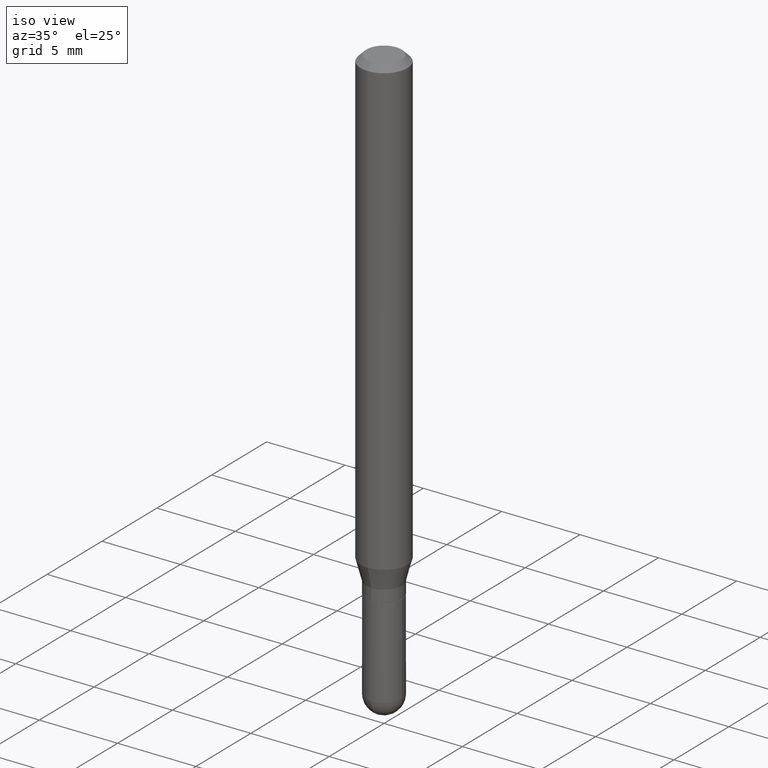
[diagram: clean part render]
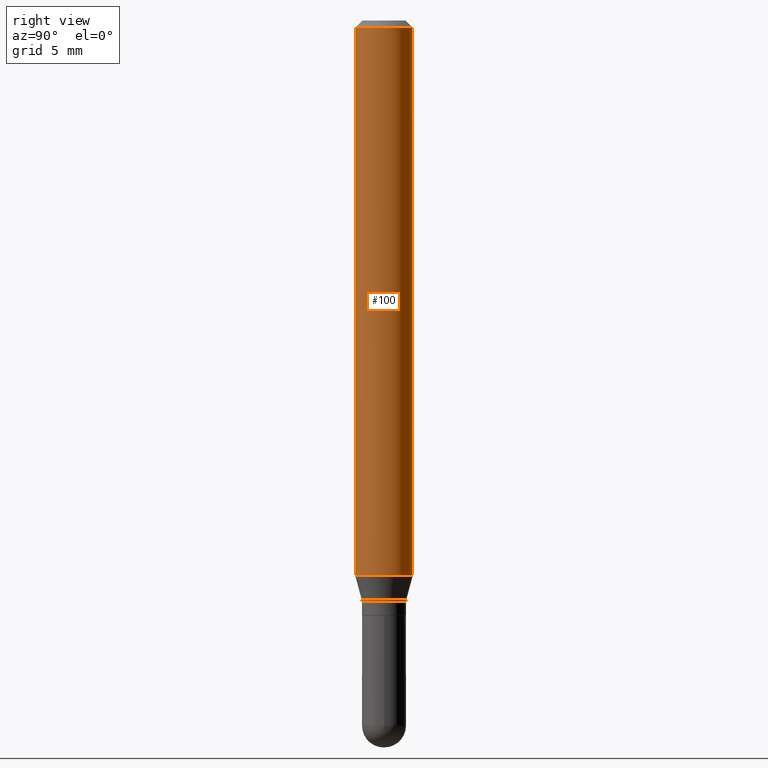
[diagram: tour spotlight — one face highlighted and labeled with its STEP entity id]
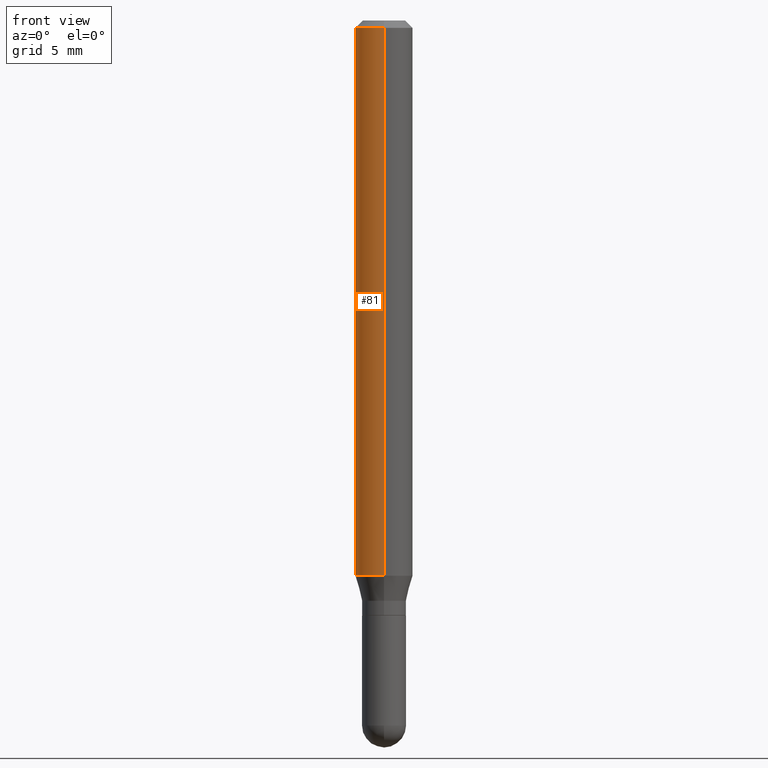
[diagram: tour spotlight — one face highlighted and labeled with its STEP entity id]
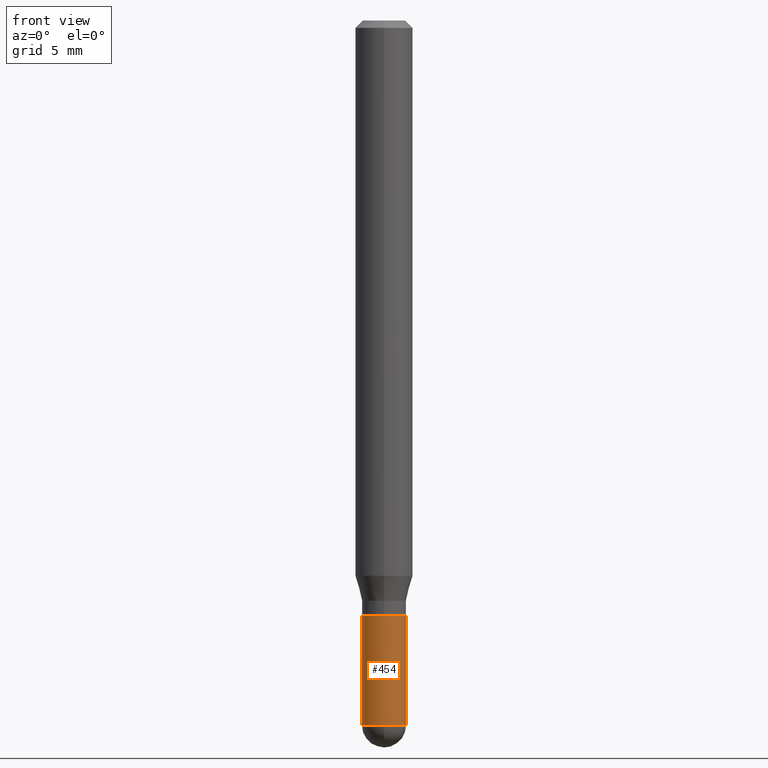
[diagram: tour spotlight — one face highlighted and labeled with its STEP entity id]
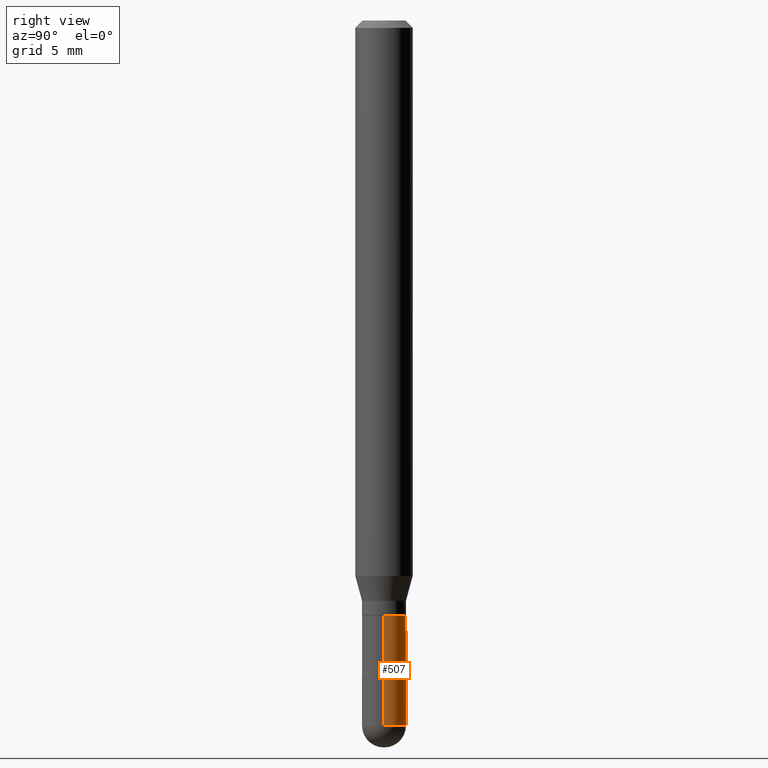
[diagram: tour spotlight — one face highlighted and labeled with its STEP entity id]
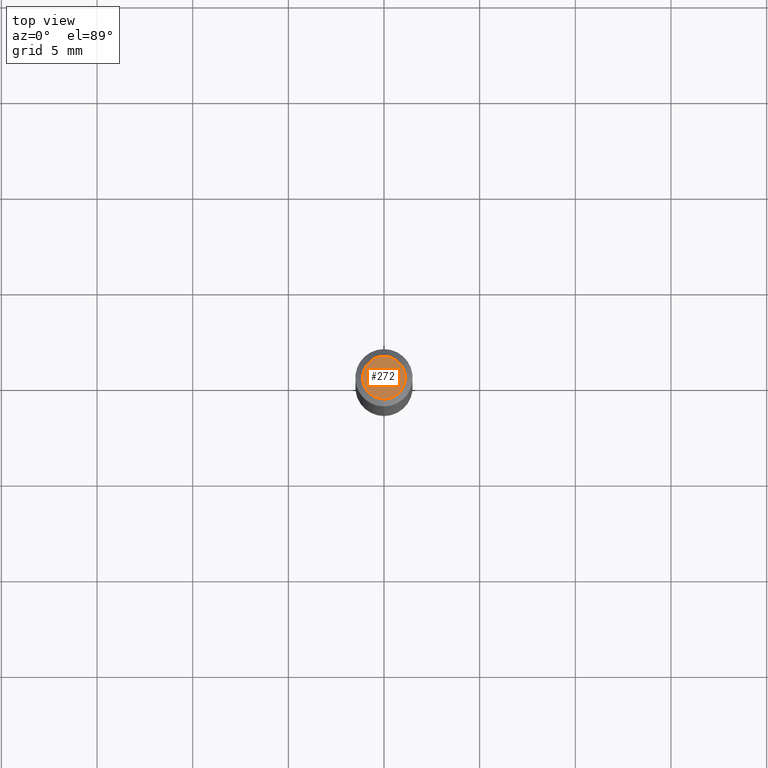
[diagram: tour spotlight — one face highlighted and labeled with its STEP entity id]
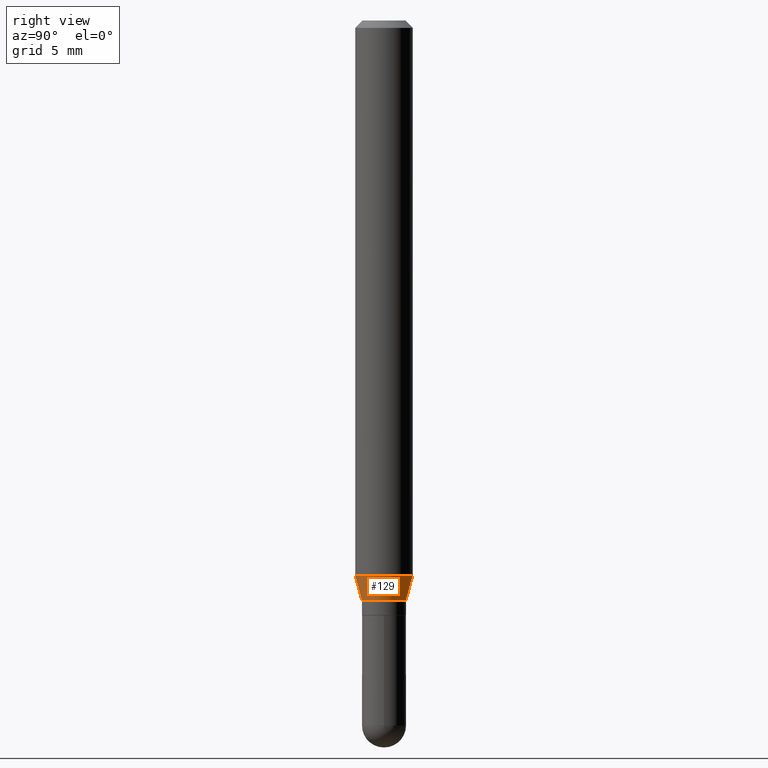
[diagram: tour spotlight — one face highlighted and labeled with its STEP entity id]
A machine part: a face-by-face anatomy tour. The part has 17 B-rep faces; the first image is the clean iso view, then the 6 largest visible faces are spotlighted one at a time (largest first), each with its STEP entity span.

Face 1 — right view, entity #100. In plain terms, the highlighted cylindrical surface (edge-blend (fillet) strip) has radius 1.4999 mm, axis along (-0, 0, 1).
Definition (entity closure, byte-faithful):
#2 = DIRECTION ( 'NONE',  ( -2.445400630016403111E-29, 3.491578970997118229E-15, 1.000000000000000000 ) ) ;
#5 = CYLINDRICAL_SURFACE ( 'NONE', #428, 0.05904999999999999832 ) ;
#10 = CARTESIAN_POINT ( 'NONE',  ( 2.794565450606458649E-29, -3.990121635139656722E-15, -1.142784301395928459 ) ) ;
#18 = EDGE_CURVE ( 'NONE', #465, #371, #159, .T. ) ;
#21 = EDGE_LOOP ( 'NONE', ( #35, #242, #506, #259 ) ) ;
#22 = DIRECTION ( 'NONE',  ( -6.982962677686265922E-15, -1.000000000000000000, 4.626330217890369336E-15 ) ) ;
#35 = ORIENTED_EDGE ( 'NONE', *, *, #196, .T. ) ;
#44 = AXIS2_PLACEMENT_3D ( 'NONE', #10, #336, #22 ) ;
#49 = EDGE_CURVE ( 'NONE', #255, #371, #388, .T. ) ;
#67 = AXIS2_PLACEMENT_3D ( 'NONE', #238, #2, #317 ) ;
#71 = CARTESIAN_POINT ( 'NONE',  ( 4.195754854663672017E-16, 0.05904999999999994975, -0.01500000000000023016 ) ) ;
#100 = ADVANCED_FACE ( 'NONE', ( #361 ), #5, .T. ) ;
#107 = CARTESIAN_POINT ( 'NONE',  ( -4.123439461173739834E-16, -0.05904999999999999832, 2.061777382373798353E-16 ) ) ;
#130 = DIRECTION ( 'NONE',  ( -2.445400630016403111E-29, 3.491578970997118229E-15, 1.000000000000000000 ) ) ;
#159 = CIRCLE ( 'NONE', #67, 0.05904999999999999832 ) ;
#182 = CARTESIAN_POINT ( 'NONE',  ( -4.123439461173460774E-16, -0.05905000000000398819, -1.142784301395928237 ) ) ;
#196 = EDGE_CURVE ( 'NONE', #501, #255, #490, .T. ) ;
#207 = DIRECTION ( 'NONE',  ( -2.445400630016402831E-29, 3.491578970997118229E-15, 1.000000000000000000 ) ) ;
#213 = VECTOR ( 'NONE', #257, 39.37007874015748143 ) ;
#214 = LINE ( 'NONE', #107, #213 ) ;
#227 = CARTESIAN_POINT ( 'NONE',  ( -4.123439461173736383E-16, -0.05905000000000005383, -0.01499999999999981730 ) ) ;
#238 = CARTESIAN_POINT ( 'NONE',  ( 3.668100945024610009E-31, -5.237368456495685873E-17, -0.01500000000000002373 ) ) ;
#242 = ORIENTED_EDGE ( 'NONE', *, *, #49, .T. ) ;
#255 = VERTEX_POINT ( 'NONE', #260 ) ;
#257 = DIRECTION ( 'NONE',  ( -2.445400630016402831E-29, 3.491578970997118229E-15, 1.000000000000000000 ) ) ;
#259 = ORIENTED_EDGE ( 'NONE', *, *, #332, .F. ) ;
#260 = CARTESIAN_POINT ( 'NONE',  ( 4.195754854663669552E-16, 0.05904999999999600152, -1.142784301395928681 ) ) ;
#286 = DIRECTION ( 'NONE',  ( -6.982962677686265922E-15, -1.000000000000000000, 3.491578970997118229E-15 ) ) ;
#315 = CARTESIAN_POINT ( 'NONE',  ( 4.195754854663390985E-16, 0.05904999999999999832, -2.061777382373798353E-16 ) ) ;
#317 = DIRECTION ( 'NONE',  ( -6.982962677686265922E-15, -1.000000000000000000, 3.505890868245046092E-15 ) ) ;
#332 = EDGE_CURVE ( 'NONE', #501, #465, #214, .T. ) ;
#336 = DIRECTION ( 'NONE',  ( -2.445400630016403111E-29, 3.491578970997118229E-15, 1.000000000000000000 ) ) ;
#361 = FACE_OUTER_BOUND ( 'NONE', #21, .T. ) ;
#371 = VERTEX_POINT ( 'NONE', #71 ) ;
#388 = LINE ( 'NONE', #315, #471 ) ;
#428 = AXIS2_PLACEMENT_3D ( 'NONE', #482, #130, #286 ) ;
#465 = VERTEX_POINT ( 'NONE', #227 ) ;
#471 = VECTOR ( 'NONE', #207, 39.37007874015748143 ) ;
#482 = CARTESIAN_POINT ( 'NONE',  ( 0.000000000000000000, 0.000000000000000000, 0.000000000000000000 ) ) ;
#490 = CIRCLE ( 'NONE', #44, 0.05904999999999999832 ) ;
#501 = VERTEX_POINT ( 'NONE', #182 ) ;
#506 = ORIENTED_EDGE ( 'NONE', *, *, #18, .F. ) ;

Face 2 — front view, entity #81. In plain terms, the highlighted cylindrical surface (edge-blend (fillet) strip) has radius 1.4999 mm, axis along (-0, 0, 1).
Definition (entity closure, byte-faithful):
#49 = EDGE_CURVE ( 'NONE', #255, #371, #388, .T. ) ;
#57 = DIRECTION ( 'NONE',  ( -2.445400630016403111E-29, 3.491578970997118229E-15, 1.000000000000000000 ) ) ;
#71 = CARTESIAN_POINT ( 'NONE',  ( 4.195754854663672017E-16, 0.05904999999999994975, -0.01500000000000023016 ) ) ;
#79 = CIRCLE ( 'NONE', #106, 0.05904999999999999832 ) ;
#81 = ADVANCED_FACE ( 'NONE', ( #169 ), #283, .T. ) ;
#89 = DIRECTION ( 'NONE',  ( -2.445400630016403111E-29, 3.491578970997118229E-15, 1.000000000000000000 ) ) ;
#95 = CARTESIAN_POINT ( 'NONE',  ( 0.000000000000000000, 0.000000000000000000, 0.000000000000000000 ) ) ;
#106 = AXIS2_PLACEMENT_3D ( 'NONE', #486, #57, #175 ) ;
#107 = CARTESIAN_POINT ( 'NONE',  ( -4.123439461173739834E-16, -0.05904999999999999832, 2.061777382373798353E-16 ) ) ;
#145 = EDGE_CURVE ( 'NONE', #371, #465, #79, .T. ) ;
#169 = FACE_OUTER_BOUND ( 'NONE', #462, .T. ) ;
#170 = DIRECTION ( 'NONE',  ( -6.982962677686265922E-15, -1.000000000000000000, 4.626330217890369336E-15 ) ) ;
#175 = DIRECTION ( 'NONE',  ( -6.982962677686265922E-15, -1.000000000000000000, 3.505890868245046092E-15 ) ) ;
#182 = CARTESIAN_POINT ( 'NONE',  ( -4.123439461173460774E-16, -0.05905000000000398819, -1.142784301395928237 ) ) ;
#187 = AXIS2_PLACEMENT_3D ( 'NONE', #95, #89, #308 ) ;
#189 = AXIS2_PLACEMENT_3D ( 'NONE', #211, #249, #170 ) ;
#207 = DIRECTION ( 'NONE',  ( -2.445400630016402831E-29, 3.491578970997118229E-15, 1.000000000000000000 ) ) ;
#211 = CARTESIAN_POINT ( 'NONE',  ( 2.794565450606458649E-29, -3.990121635139656722E-15, -1.142784301395928459 ) ) ;
#213 = VECTOR ( 'NONE', #257, 39.37007874015748143 ) ;
#214 = LINE ( 'NONE', #107, #213 ) ;
#222 = EDGE_CURVE ( 'NONE', #255, #501, #277, .T. ) ;
#227 = CARTESIAN_POINT ( 'NONE',  ( -4.123439461173736383E-16, -0.05905000000000005383, -0.01499999999999981730 ) ) ;
#249 = DIRECTION ( 'NONE',  ( -2.445400630016403111E-29, 3.491578970997118229E-15, 1.000000000000000000 ) ) ;
#255 = VERTEX_POINT ( 'NONE', #260 ) ;
#257 = DIRECTION ( 'NONE',  ( -2.445400630016402831E-29, 3.491578970997118229E-15, 1.000000000000000000 ) ) ;
#260 = CARTESIAN_POINT ( 'NONE',  ( 4.195754854663669552E-16, 0.05904999999999600152, -1.142784301395928681 ) ) ;
#277 = CIRCLE ( 'NONE', #189, 0.05904999999999999832 ) ;
#283 = CYLINDRICAL_SURFACE ( 'NONE', #187, 0.05904999999999999832 ) ;
#308 = DIRECTION ( 'NONE',  ( -6.982962677686265922E-15, -1.000000000000000000, 3.491578970997118229E-15 ) ) ;
#315 = CARTESIAN_POINT ( 'NONE',  ( 4.195754854663390985E-16, 0.05904999999999999832, -2.061777382373798353E-16 ) ) ;
#332 = EDGE_CURVE ( 'NONE', #501, #465, #214, .T. ) ;
#371 = VERTEX_POINT ( 'NONE', #71 ) ;
#388 = LINE ( 'NONE', #315, #471 ) ;
#406 = ORIENTED_EDGE ( 'NONE', *, *, #222, .T. ) ;
#457 = ORIENTED_EDGE ( 'NONE', *, *, #49, .F. ) ;
#462 = EDGE_LOOP ( 'NONE', ( #457, #406, #498, #503 ) ) ;
#465 = VERTEX_POINT ( 'NONE', #227 ) ;
#471 = VECTOR ( 'NONE', #207, 39.37007874015748143 ) ;
#486 = CARTESIAN_POINT ( 'NONE',  ( 3.668100945024610009E-31, -5.237368456495685873E-17, -0.01500000000000002373 ) ) ;
#498 = ORIENTED_EDGE ( 'NONE', *, *, #332, .T. ) ;
#501 = VERTEX_POINT ( 'NONE', #182 ) ;
#503 = ORIENTED_EDGE ( 'NONE', *, *, #145, .F. ) ;

Face 3 — front view, entity #454. In plain terms, the highlighted cylindrical surface (edge-blend (fillet) strip) has radius 1.1506 mm, axis along (-0, 0, 1).
Definition (entity closure, byte-faithful):
#4 = DIRECTION ( 'NONE',  ( -2.445468806185136597E-29, 3.491481338843145583E-15, 1.000000000000000000 ) ) ;
#16 = CIRCLE ( 'NONE', #205, 0.04529999999999999999 ) ;
#36 = CARTESIAN_POINT ( 'NONE',  ( -0.04530000000000000693, 3.218758592993254334E-16, -2.228277595885472564E-30 ) ) ;
#43 = EDGE_CURVE ( 'NONE', #253, #91, #434, .T. ) ;
#61 = CARTESIAN_POINT ( 'NONE',  ( 0.04530000000000000693, -3.163282092991879344E-16, 2.208908079435559539E-30 ) ) ;
#69 = ORIENTED_EDGE ( 'NONE', *, *, #43, .T. ) ;
#74 = DIRECTION ( 'NONE',  ( 1.000000000000000000, -6.982962677686266711E-15, 4.876176775795936353E-29 ) ) ;
#76 = CARTESIAN_POINT ( 'NONE',  ( 3.547886144013395202E-29, -5.065441126393634337E-15, -1.450799999999999645 ) ) ;
#78 = AXIS2_PLACEMENT_3D ( 'NONE', #76, #4, #476 ) ;
#91 = VERTEX_POINT ( 'NONE', #467 ) ;
#96 = ORIENTED_EDGE ( 'NONE', *, *, #152, .F. ) ;
#101 = DIRECTION ( 'NONE',  ( -2.445468806185136597E-29, 3.491481338843145583E-15, 1.000000000000000000 ) ) ;
#117 = CYLINDRICAL_SURFACE ( 'NONE', #464, 0.04530000000000000693 ) ;
#139 = CARTESIAN_POINT ( 'NONE',  ( -0.04530000000000000693, -4.348329579537264718E-15, -1.450799999999999645 ) ) ;
#150 = CARTESIAN_POINT ( 'NONE',  ( 0.04529999999999999999, -4.591297960578735035E-15, -1.224399999999999933 ) ) ;
#152 = EDGE_CURVE ( 'NONE', #261, #377, #16, .T. ) ;
#156 = FACE_OUTER_BOUND ( 'NONE', #303, .T. ) ;
#177 = VERTEX_POINT ( 'NONE', #139 ) ;
#205 = AXIS2_PLACEMENT_3D ( 'NONE', #414, #459, #329 ) ;
#210 = ORIENTED_EDGE ( 'NONE', *, *, #325, .T. ) ;
#218 = ORIENTED_EDGE ( 'NONE', *, *, #370, .F. ) ;
#253 = VERTEX_POINT ( 'NONE', #487 ) ;
#261 = VERTEX_POINT ( 'NONE', #369 ) ;
#266 = EDGE_CURVE ( 'NONE', #177, #253, #321, .T. ) ;
#267 = VECTOR ( 'NONE', #453, 39.37007874015748143 ) ;
#288 = DIRECTION ( 'NONE',  ( 1.000000000000000000, -6.982962677686269866E-15, 0.000000000000000000 ) ) ;
#303 = EDGE_LOOP ( 'NONE', ( #218, #362, #69, #210, #96 ) ) ;
#321 = CIRCLE ( 'NONE', #389, 0.04530000000000000693 ) ;
#325 = EDGE_CURVE ( 'NONE', #91, #377, #407, .T. ) ;
#329 = DIRECTION ( 'NONE',  ( 1.000000000000000000, -6.982962677686271444E-15, 0.000000000000000000 ) ) ;
#343 = DIRECTION ( 'NONE',  ( -2.445468806185136877E-29, 3.491481338843145188E-15, 1.000000000000000000 ) ) ;
#362 = ORIENTED_EDGE ( 'NONE', *, *, #266, .T. ) ;
#369 = CARTESIAN_POINT ( 'NONE',  ( -0.04529999999999999999, -4.348329579537264718E-15, -1.224399999999999933 ) ) ;
#370 = EDGE_CURVE ( 'NONE', #177, #261, #387, .T. ) ;
#373 = VECTOR ( 'NONE', #343, 39.37007874015748143 ) ;
#377 = VERTEX_POINT ( 'NONE', #150 ) ;
#387 = LINE ( 'NONE', #36, #373 ) ;
#389 = AXIS2_PLACEMENT_3D ( 'NONE', #448, #101, #288 ) ;
#407 = LINE ( 'NONE', #61, #267 ) ;
#414 = CARTESIAN_POINT ( 'NONE',  ( 2.994232006293080857E-29, -4.274969751279546755E-15, -1.224399999999999933 ) ) ;
#426 = CARTESIAN_POINT ( 'NONE',  ( 0.000000000000000000, 0.000000000000000000, 0.000000000000000000 ) ) ;
#429 = DIRECTION ( 'NONE',  ( -2.445468806185136597E-29, 3.491481338843145583E-15, 1.000000000000000000 ) ) ;
#434 = CIRCLE ( 'NONE', #78, 0.04530000000000000693 ) ;
#448 = CARTESIAN_POINT ( 'NONE',  ( 3.547886144013395202E-29, -5.065441126393634337E-15, -1.450799999999999645 ) ) ;
#453 = DIRECTION ( 'NONE',  ( -2.445468806185136877E-29, 3.491481338843145188E-15, 1.000000000000000000 ) ) ;
#454 = ADVANCED_FACE ( 'NONE', ( #156 ), #117, .T. ) ;
#459 = DIRECTION ( 'NONE',  ( -2.445468806185136597E-29, 3.491481338843145583E-15, 1.000000000000000000 ) ) ;
#464 = AXIS2_PLACEMENT_3D ( 'NONE', #426, #429, #74 ) ;
#467 = CARTESIAN_POINT ( 'NONE',  ( 0.04530000000000000693, -4.986533648135779220E-15, -1.450799999999999645 ) ) ;
#476 = DIRECTION ( 'NONE',  ( 1.000000000000000000, -6.982962677686269866E-15, 0.000000000000000000 ) ) ;
#487 = CARTESIAN_POINT ( 'NONE',  ( -3.163282092991518934E-16, -0.04530000000000499599, -1.450799999999999423 ) ) ;

Face 4 — right view, entity #507. In plain terms, the highlighted cylindrical surface (edge-blend (fillet) strip) has radius 1.1506 mm, axis along (-0, 0, 1).
Definition (entity closure, byte-faithful):
#36 = CARTESIAN_POINT ( 'NONE',  ( -0.04530000000000000693, 3.218758592993254334E-16, -2.228277595885472564E-30 ) ) ;
#42 = DIRECTION ( 'NONE',  ( 1.000000000000000000, -6.982962677686266711E-15, 4.876176775795936353E-29 ) ) ;
#61 = CARTESIAN_POINT ( 'NONE',  ( 0.04530000000000000693, -3.163282092991879344E-16, 2.208908079435559539E-30 ) ) ;
#66 = EDGE_CURVE ( 'NONE', #224, #177, #348, .T. ) ;
#91 = VERTEX_POINT ( 'NONE', #467 ) ;
#111 = ORIENTED_EDGE ( 'NONE', *, *, #370, .T. ) ;
#123 = DIRECTION ( 'NONE',  ( -2.445468806185136597E-29, 3.491481338843145583E-15, 1.000000000000000000 ) ) ;
#136 = ORIENTED_EDGE ( 'NONE', *, *, #66, .T. ) ;
#137 = AXIS2_PLACEMENT_3D ( 'NONE', #302, #431, #42 ) ;
#139 = CARTESIAN_POINT ( 'NONE',  ( -0.04530000000000000693, -4.348329579537264718E-15, -1.450799999999999645 ) ) ;
#148 = CYLINDRICAL_SURFACE ( 'NONE', #137, 0.04530000000000000693 ) ;
#150 = CARTESIAN_POINT ( 'NONE',  ( 0.04529999999999999999, -4.591297960578735035E-15, -1.224399999999999933 ) ) ;
#177 = VERTEX_POINT ( 'NONE', #139 ) ;
#212 = AXIS2_PLACEMENT_3D ( 'NONE', #398, #401, #273 ) ;
#224 = VERTEX_POINT ( 'NONE', #403 ) ;
#232 = DIRECTION ( 'NONE',  ( 1.000000000000000000, -6.982962677686269866E-15, 0.000000000000000000 ) ) ;
#246 = AXIS2_PLACEMENT_3D ( 'NONE', #461, #504, #304 ) ;
#261 = VERTEX_POINT ( 'NONE', #369 ) ;
#267 = VECTOR ( 'NONE', #453, 39.37007874015748143 ) ;
#273 = DIRECTION ( 'NONE',  ( 1.000000000000000000, -6.982962677686269866E-15, 0.000000000000000000 ) ) ;
#299 = AXIS2_PLACEMENT_3D ( 'NONE', #352, #123, #232 ) ;
#302 = CARTESIAN_POINT ( 'NONE',  ( 0.000000000000000000, 0.000000000000000000, 0.000000000000000000 ) ) ;
#304 = DIRECTION ( 'NONE',  ( 1.000000000000000000, -6.982962677686271444E-15, 0.000000000000000000 ) ) ;
#325 = EDGE_CURVE ( 'NONE', #91, #377, #407, .T. ) ;
#337 = ORIENTED_EDGE ( 'NONE', *, *, #325, .F. ) ;
#339 = ORIENTED_EDGE ( 'NONE', *, *, #409, .F. ) ;
#343 = DIRECTION ( 'NONE',  ( -2.445468806185136877E-29, 3.491481338843145188E-15, 1.000000000000000000 ) ) ;
#348 = CIRCLE ( 'NONE', #212, 0.04530000000000000693 ) ;
#349 = CIRCLE ( 'NONE', #246, 0.04529999999999999999 ) ;
#352 = CARTESIAN_POINT ( 'NONE',  ( 3.547886144013395202E-29, -5.065441126393634337E-15, -1.450799999999999645 ) ) ;
#354 = CIRCLE ( 'NONE', #299, 0.04530000000000000693 ) ;
#369 = CARTESIAN_POINT ( 'NONE',  ( -0.04529999999999999999, -4.348329579537264718E-15, -1.224399999999999933 ) ) ;
#370 = EDGE_CURVE ( 'NONE', #177, #261, #387, .T. ) ;
#373 = VECTOR ( 'NONE', #343, 39.37007874015748143 ) ;
#377 = VERTEX_POINT ( 'NONE', #150 ) ;
#383 = EDGE_LOOP ( 'NONE', ( #136, #111, #339, #337, #484 ) ) ;
#387 = LINE ( 'NONE', #36, #373 ) ;
#398 = CARTESIAN_POINT ( 'NONE',  ( 3.547886144013395202E-29, -5.065441126393634337E-15, -1.450799999999999645 ) ) ;
#401 = DIRECTION ( 'NONE',  ( -2.445468806185136597E-29, 3.491481338843145583E-15, 1.000000000000000000 ) ) ;
#403 = CARTESIAN_POINT ( 'NONE',  ( 3.218758592993602912E-16, 0.04529999999999485133, -1.450800000000000090 ) ) ;
#407 = LINE ( 'NONE', #61, #267 ) ;
#409 = EDGE_CURVE ( 'NONE', #377, #261, #349, .T. ) ;
#431 = DIRECTION ( 'NONE',  ( -2.445468806185136597E-29, 3.491481338843145583E-15, 1.000000000000000000 ) ) ;
#453 = DIRECTION ( 'NONE',  ( -2.445468806185136877E-29, 3.491481338843145188E-15, 1.000000000000000000 ) ) ;
#461 = CARTESIAN_POINT ( 'NONE',  ( 2.994232006293080857E-29, -4.274969751279546755E-15, -1.224399999999999933 ) ) ;
#467 = CARTESIAN_POINT ( 'NONE',  ( 0.04530000000000000693, -4.986533648135779220E-15, -1.450799999999999645 ) ) ;
#484 = ORIENTED_EDGE ( 'NONE', *, *, #512, .T. ) ;
#499 = FACE_OUTER_BOUND ( 'NONE', #383, .T. ) ;
#504 = DIRECTION ( 'NONE',  ( -2.445468806185136597E-29, 3.491481338843145583E-15, 1.000000000000000000 ) ) ;
#507 = ADVANCED_FACE ( 'NONE', ( #499 ), #148, .T. ) ;
#512 = EDGE_CURVE ( 'NONE', #91, #224, #354, .T. ) ;

Face 5 — top view, entity #272. In plain terms, the highlighted planar face has unit normal (0, -0, -1).
Definition (entity closure, byte-faithful):
#47 = CARTESIAN_POINT ( 'NONE',  ( -3.536586717851222218E-16, -0.04404999999999999888, 1.299461114874193808E-16 ) ) ;
#62 = VERTEX_POINT ( 'NONE', #47 ) ;
#99 = PLANE ( 'NONE',  #115 ) ;
#103 = CARTESIAN_POINT ( 'NONE',  ( 5.834222685010292817E-46, -8.330188922442390789E-32, -2.385794218500368520E-17 ) ) ;
#115 = AXIS2_PLACEMENT_3D ( 'NONE', #252, #294, #451 ) ;
#215 = EDGE_CURVE ( 'NONE', #239, #62, #284, .T. ) ;
#217 = DIRECTION ( 'NONE',  ( -6.982962677686265133E-15, -1.000000000000000000, 3.491578970997118623E-15 ) ) ;
#239 = VERTEX_POINT ( 'NONE', #495 ) ;
#250 = ORIENTED_EDGE ( 'NONE', *, *, #427, .T. ) ;
#252 = CARTESIAN_POINT ( 'NONE',  ( 3.075995059520799729E-16, 0.04404999999999999888, -1.657330247649249040E-16 ) ) ;
#272 = ADVANCED_FACE ( 'NONE', ( #447 ), #99, .F. ) ;
#284 = CIRCLE ( 'NONE', #306, 0.04404999999999999888 ) ;
#294 = DIRECTION ( 'NONE',  ( 2.445400630016402831E-29, -3.491578970997118229E-15, -1.000000000000000000 ) ) ;
#301 = ORIENTED_EDGE ( 'NONE', *, *, #215, .T. ) ;
#306 = AXIS2_PLACEMENT_3D ( 'NONE', #103, #374, #217 ) ;
#350 = CARTESIAN_POINT ( 'NONE',  ( 5.834222685010292817E-46, -8.330188922442390789E-32, -2.385794218500368520E-17 ) ) ;
#374 = DIRECTION ( 'NONE',  ( -2.445400630016403111E-29, 3.491578970997118229E-15, 1.000000000000000000 ) ) ;
#427 = EDGE_CURVE ( 'NONE', #62, #239, #435, .T. ) ;
#435 = CIRCLE ( 'NONE', #505, 0.04404999999999999888 ) ;
#438 = EDGE_LOOP ( 'NONE', ( #301, #250 ) ) ;
#447 = FACE_OUTER_BOUND ( 'NONE', #438, .T. ) ;
#451 = DIRECTION ( 'NONE',  ( 6.982962677686265922E-15, 1.000000000000000000, -3.491578970997118229E-15 ) ) ;
#468 = DIRECTION ( 'NONE',  ( -6.982962677686265133E-15, -1.000000000000000000, 3.491578970997118623E-15 ) ) ;
#495 = CARTESIAN_POINT ( 'NONE',  ( 3.599717260347271507E-16, 0.04404999999999999888, -1.776619958574267450E-16 ) ) ;
#505 = AXIS2_PLACEMENT_3D ( 'NONE', #350, #510, #468 ) ;
#510 = DIRECTION ( 'NONE',  ( -2.445400630016403111E-29, 3.491578970997118229E-15, 1.000000000000000000 ) ) ;

Face 6 — right view, entity #129. In plain terms, the highlighted conical surface has half-angle 15 deg.
Definition (entity closure, byte-faithful):
#10 = CARTESIAN_POINT ( 'NONE',  ( 2.794565450606458649E-29, -3.990121635139656722E-15, -1.142784301395928459 ) ) ;
#12 = LINE ( 'NONE', #291, #50 ) ;
#22 = DIRECTION ( 'NONE',  ( -6.982962677686265922E-15, -1.000000000000000000, 4.626330217890369336E-15 ) ) ;
#40 = CARTESIAN_POINT ( 'NONE',  ( 2.920052892302586962E-29, -4.169294449267658946E-15, -1.194099999999999939 ) ) ;
#44 = AXIS2_PLACEMENT_3D ( 'NONE', #10, #336, #22 ) ;
#48 = FACE_OUTER_BOUND ( 'NONE', #270, .T. ) ;
#50 = VECTOR ( 'NONE', #296, 39.37007874015748854 ) ;
#59 = ORIENTED_EDGE ( 'NONE', *, *, #450, .T. ) ;
#97 = VECTOR ( 'NONE', #153, 39.37007874015748854 ) ;
#120 = CARTESIAN_POINT ( 'NONE',  ( 3.218758592993549171E-16, 0.04529999999999589216, -1.194100000000000161 ) ) ;
#129 = ADVANCED_FACE ( 'NONE', ( #48 ), #340, .T. ) ;
#153 = DIRECTION ( 'NONE',  ( 1.839019923739603865E-15, 0.2588190451025254579, 0.9659258262890669799 ) ) ;
#157 = DIRECTION ( 'NONE',  ( -2.445400630016403111E-29, 3.491578970997118229E-15, 1.000000000000000000 ) ) ;
#182 = CARTESIAN_POINT ( 'NONE',  ( -4.123439461173460774E-16, -0.05905000000000398819, -1.142784301395928237 ) ) ;
#186 = ORIENTED_EDGE ( 'NONE', *, *, #251, .F. ) ;
#190 = DIRECTION ( 'NONE',  ( -6.982962677686265133E-15, -1.000000000000000000, 3.015284761218829434E-15 ) ) ;
#195 = AXIS2_PLACEMENT_3D ( 'NONE', #204, #365, #326 ) ;
#196 = EDGE_CURVE ( 'NONE', #501, #255, #490, .T. ) ;
#204 = CARTESIAN_POINT ( 'NONE',  ( 2.920052892302586962E-29, -4.169294449267658946E-15, -1.194099999999999939 ) ) ;
#247 = VERTEX_POINT ( 'NONE', #372 ) ;
#251 = EDGE_CURVE ( 'NONE', #247, #501, #12, .T. ) ;
#255 = VERTEX_POINT ( 'NONE', #260 ) ;
#256 = AXIS2_PLACEMENT_3D ( 'NONE', #40, #157, #190 ) ;
#260 = CARTESIAN_POINT ( 'NONE',  ( 4.195754854663669552E-16, 0.05904999999999600152, -1.142784301395928681 ) ) ;
#270 = EDGE_LOOP ( 'NONE', ( #305, #59, #452, #186 ) ) ;
#291 = CARTESIAN_POINT ( 'NONE',  ( -3.163282092991590424E-16, -0.04530000000000422578, -1.194099999999999939 ) ) ;
#296 = DIRECTION ( 'NONE',  ( -1.807323732225333689E-15, -0.2588190451025186856, 0.9659258262890687563 ) ) ;
#305 = ORIENTED_EDGE ( 'NONE', *, *, #477, .T. ) ;
#307 = LINE ( 'NONE', #120, #97 ) ;
#326 = DIRECTION ( 'NONE',  ( -6.982962677686265133E-15, -1.000000000000000000, 3.015284761218829434E-15 ) ) ;
#336 = DIRECTION ( 'NONE',  ( -2.445400630016403111E-29, 3.491578970997118229E-15, 1.000000000000000000 ) ) ;
#340 = CONICAL_SURFACE ( 'NONE', #195, 0.04530000000000006244, 0.2617993877991508511 ) ;
#365 = DIRECTION ( 'NONE',  ( -2.445400630016403111E-29, 3.491578970997118229E-15, 1.000000000000000000 ) ) ;
#372 = CARTESIAN_POINT ( 'NONE',  ( -3.163282092991590424E-16, -0.04530000000000422578, -1.194099999999999939 ) ) ;
#381 = CARTESIAN_POINT ( 'NONE',  ( 3.707256723828610594E-16, 0.04529999999999589216, -1.194100000000000161 ) ) ;
#423 = VERTEX_POINT ( 'NONE', #381 ) ;
#446 = CIRCLE ( 'NONE', #256, 0.04530000000000006244 ) ;
#450 = EDGE_CURVE ( 'NONE', #423, #255, #307, .T. ) ;
#452 = ORIENTED_EDGE ( 'NONE', *, *, #196, .F. ) ;
#477 = EDGE_CURVE ( 'NONE', #247, #423, #446, .T. ) ;
#490 = CIRCLE ( 'NONE', #44, 0.05904999999999999832 ) ;
#501 = VERTEX_POINT ( 'NONE', #182 ) ;